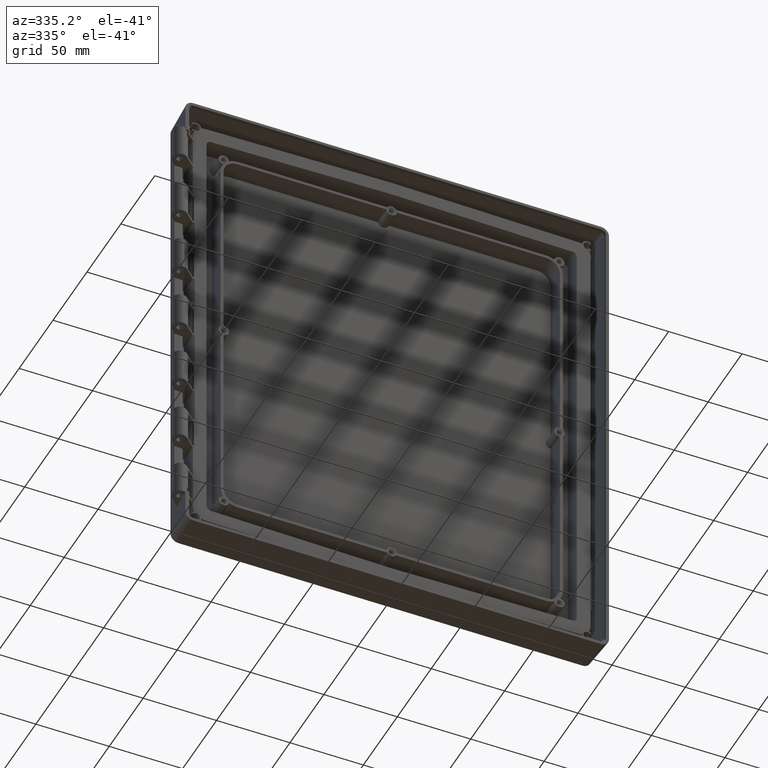
[diagram: clean part render]
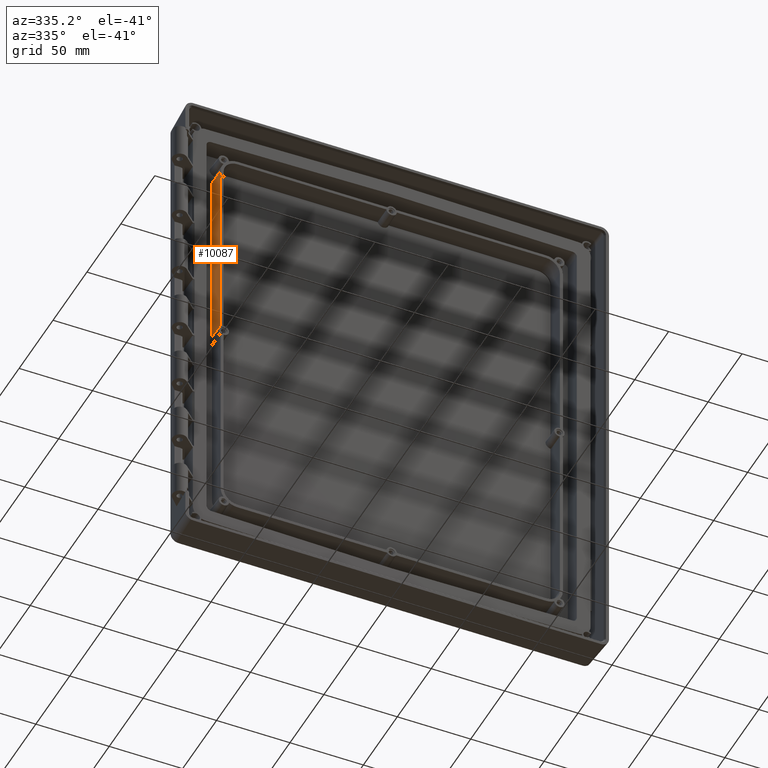
[diagram: same view with one face highlighted and labeled with its STEP entity id]
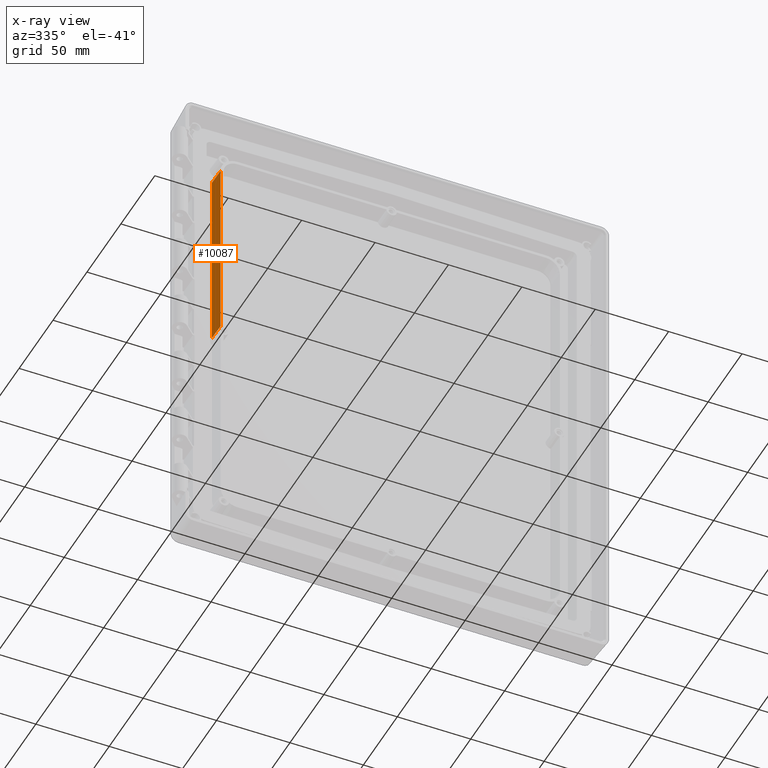
[diagram: x-ray of the same camera — body ghosted, the highlighted face saturated]
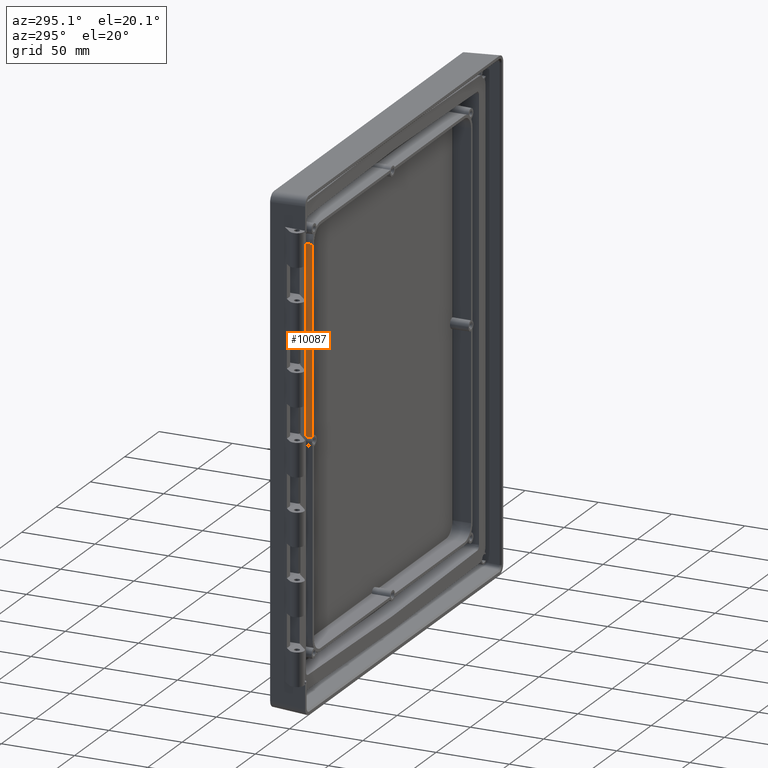
[diagram: same view with one face highlighted and labeled with its STEP entity id]
A machine part, auxiliary view. The second image highlights one B-rep face of the part: STEP entity #10087.
The next image is the same camera in x-ray: the body ghosted, the highlighted face saturated — about 0% of this face is hidden behind the body in this view.
A second angle (auxiliary view) of the same face is appended — the face is thin or edge-on in the first view.
In plain terms, the highlighted planar face has unit normal (-1, -0.0087, 0).
Its self-contained STEP definition (entity closure, byte-faithful):
#1391=DIRECTION('',(0.E0,0.E0,-1.E0));
#1392=VECTOR('',#1391,1.270841812159E2);
#1393=CARTESIAN_POINT('',(-1.166099585342E2,1.26E1,1.3E2));
#1394=LINE('',#1393,#1392);
#1626=DIRECTION('',(0.E0,0.E0,-1.E0));
#1627=VECTOR('',#1626,1.272778684822E2);
#1628=CARTESIAN_POINT('',(-1.165E2,0.E0,1.3E2));
#1629=LINE('',#1628,#1627);
#2055=CARTESIAN_POINT('',(-1.166099585342E2,1.26E1,2.915818784056E0));
#2056=CARTESIAN_POINT('',(-1.165977081873E2,1.119624929299E1,2.894263909755E0));
#2057=CARTESIAN_POINT('',(-1.165732293085E2,8.391247610468E0,2.851177830554E0));
#2058=CARTESIAN_POINT('',(-1.165365759226E2,4.191185602574E0,2.786615995767E0));
#2059=CARTESIAN_POINT('',(-1.165121846455E2,1.396222083218E0,2.743619382831E0));
#2060=CARTESIAN_POINT('',(-1.165E2,0.E0,2.722131517763E0));
#2062=DIRECTION('',(8.726535498372E-3,-9.999619230642E-1,0.E0));
#2063=VECTOR('',#2062,1.260047978766E1);
#2064=CARTESIAN_POINT('',(-1.166099585342E2,1.26E1,1.3E2));
#2065=LINE('',#2064,#2063);
#7795=CARTESIAN_POINT('',(-1.165E2,0.E0,1.3E2));
#7797=VERTEX_POINT('',#7795);
#7824=CARTESIAN_POINT('',(-1.166099585342E2,1.26E1,1.3E2));
#7825=VERTEX_POINT('',#7824);
#7844=VERTEX_POINT('',#2055);
#7845=VERTEX_POINT('',#2060);
#10075=CARTESIAN_POINT('',(-1.165E2,0.E0,1.377092770185E2));
#10076=DIRECTION('',(-9.999619230642E-1,-8.726535498374E-3,0.E0));
#10077=DIRECTION('',(0.E0,0.E0,-1.E0));
#10078=AXIS2_PLACEMENT_3D('',#10075,#10076,#10077);
#10079=PLANE('',#10078);
#10081=ORIENTED_EDGE('',*,*,#10080,.F.);
#10082=ORIENTED_EDGE('',*,*,#9228,.F.);
#10083=ORIENTED_EDGE('',*,*,#10018,.T.);
#10084=ORIENTED_EDGE('',*,*,#9570,.T.);
#10085=EDGE_LOOP('',(#10081,#10082,#10083,#10084));
#10086=FACE_OUTER_BOUND('',#10085,.F.);
#10087=ADVANCED_FACE('',(#10086),#10079,.T.);
#2061=B_SPLINE_CURVE_WITH_KNOTS('',3,(#2055,#2056,#2057,#2058,#2059,#2060),
.UNSPECIFIED.,.F.,.F.,(4,1,1,4),(0.E0,3.333333333333E-1,6.666666666667E-1,1.E0),
.UNSPECIFIED.);
#9228=EDGE_CURVE('',#7825,#7844,#1394,.T.);
#9570=EDGE_CURVE('',#7797,#7845,#1629,.T.);
#10018=EDGE_CURVE('',#7825,#7797,#2065,.T.);
#10080=EDGE_CURVE('',#7844,#7845,#2061,.T.);